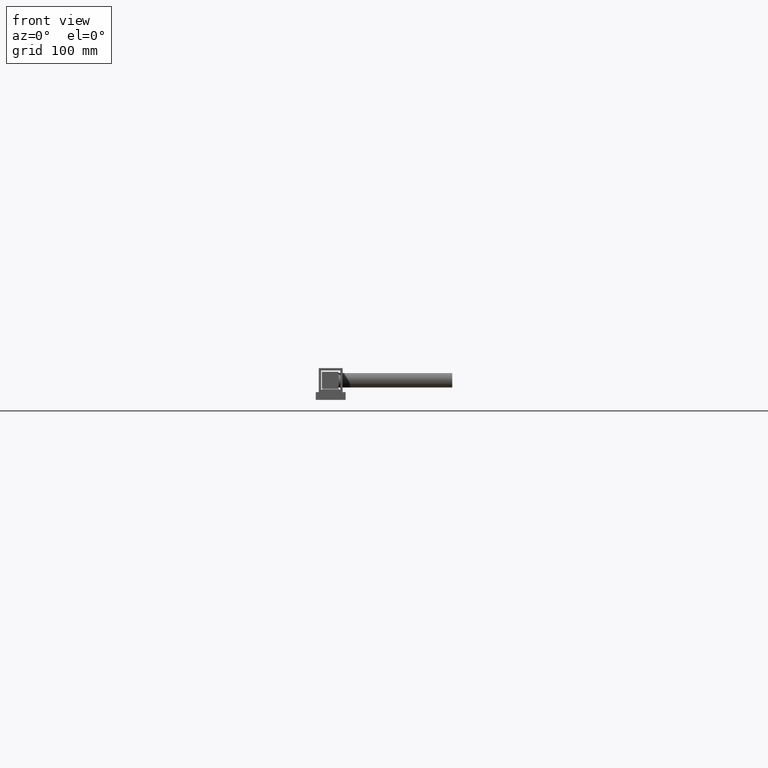
[diagram: clean part render]
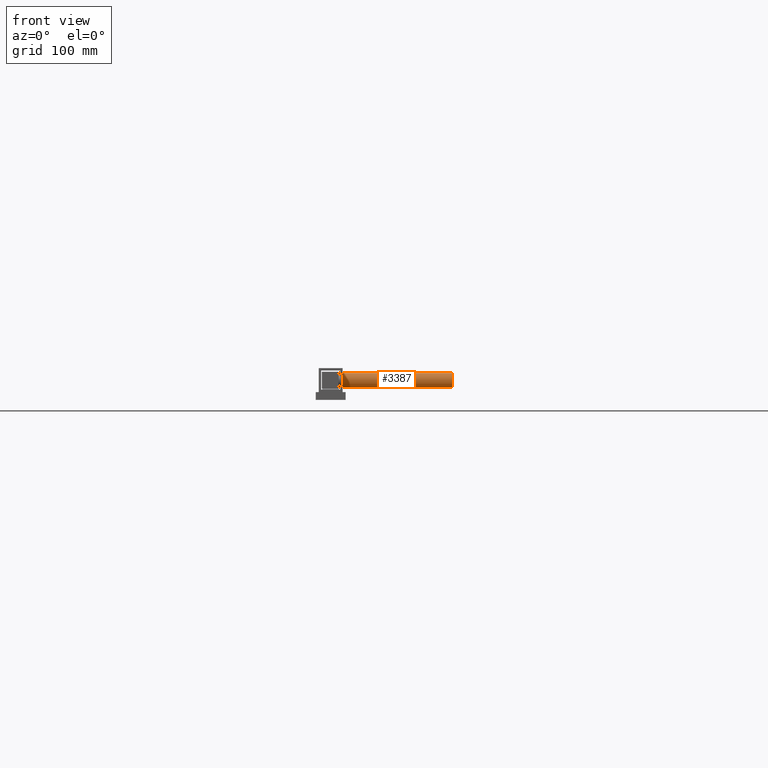
[diagram: same view with one face highlighted and labeled with its STEP entity id]
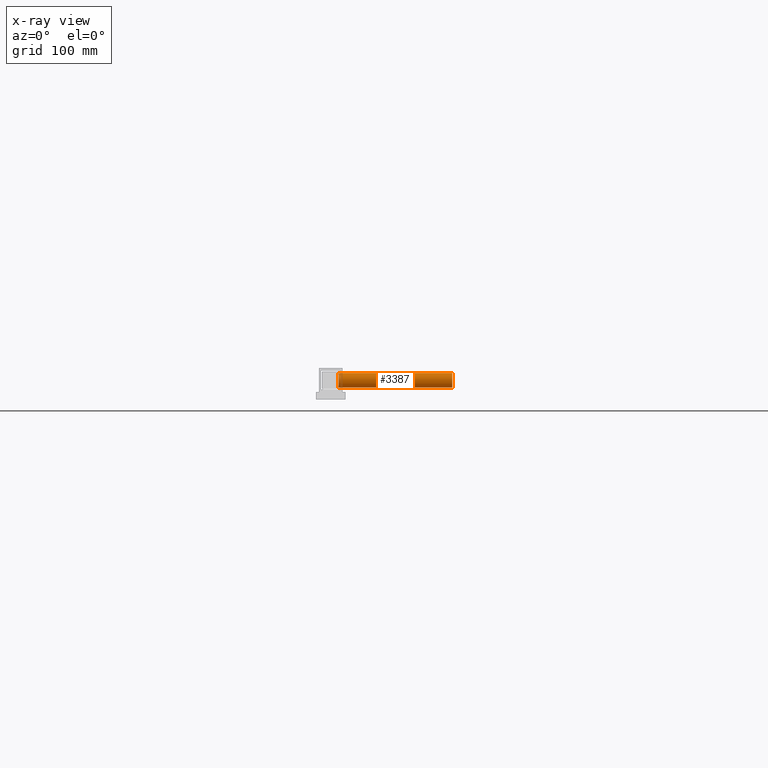
[diagram: x-ray of the same camera — body ghosted, the highlighted face saturated]
A machine part, front view. The second image highlights one B-rep face of the part: STEP entity #3387.
The next image is the same camera in x-ray: the body ghosted, the highlighted face saturated — about 3% of this face is hidden behind the body in this view.
In plain terms, the highlighted cylindrical surface (bore or boss wall) has radius 6 mm, axis along (-1, -0, -0).
Its self-contained STEP definition (entity closure, byte-faithful):
#174 = EDGE_CURVE ( 'NONE', #7040, #7040, #1661, .T. ) ;
#449 = CARTESIAN_POINT ( 'NONE',  ( 101.6724173620451381, 387.0000000000000000, 10.36032359920136159 ) ) ;
#752 = DIRECTION ( 'NONE',  ( 1.000000000000000000, 0.000000000000000000, 0.000000000000000000 ) ) ;
#1661 = CIRCLE ( 'NONE', #3406, 6.000000000000003553 ) ;
#2179 = ORIENTED_EDGE ( 'NONE', *, *, #7530, .T. ) ;
#2356 = DIRECTION ( 'NONE',  ( 0.000000000000000000, 0.000000000000000000, -1.000000000000000000 ) ) ;
#2431 = DIRECTION ( 'NONE',  ( 1.000000000000000000, 0.000000000000000000, 0.000000000000000000 ) ) ;
#3198 = DIRECTION ( 'NONE',  ( 0.000000000000000000, 0.000000000000000000, 1.000000000000000000 ) ) ;
#3254 = AXIS2_PLACEMENT_3D ( 'NONE', #11800, #6933, #3198 ) ;
#3315 = CARTESIAN_POINT ( 'NONE',  ( 6.672417362045123923, 387.0000000000000000, 16.36032359920136514 ) ) ;
#3387 = ADVANCED_FACE ( 'NONE', ( #4809, #3571 ), #9721, .T. ) ;
#3406 = AXIS2_PLACEMENT_3D ( 'NONE', #10211, #752, #9423 ) ;
#3571 = FACE_OUTER_BOUND ( 'NONE', #10236, .T. ) ;
#3617 = CIRCLE ( 'NONE', #4990, 6.000000000000003553 ) ;
#4001 = EDGE_LOOP ( 'NONE', ( #4123 ) ) ;
#4123 = ORIENTED_EDGE ( 'NONE', *, *, #174, .F. ) ;
#4809 = FACE_OUTER_BOUND ( 'NONE', #4001, .T. ) ;
#4990 = AXIS2_PLACEMENT_3D ( 'NONE', #3315, #2431, #2356 ) ;
#6933 = DIRECTION ( 'NONE',  ( -1.000000000000000000, -0.000000000000000000, -0.000000000000000000 ) ) ;
#7040 = VERTEX_POINT ( 'NONE', #449 ) ;
#7530 = EDGE_CURVE ( 'NONE', #11517, #11517, #3617, .T. ) ;
#9423 = DIRECTION ( 'NONE',  ( 0.000000000000000000, 0.000000000000000000, -1.000000000000000000 ) ) ;
#9721 = CYLINDRICAL_SURFACE ( 'NONE', #3254, 6.000000000000005329 ) ;
#10211 = CARTESIAN_POINT ( 'NONE',  ( 101.6724173620451381, 387.0000000000000000, 16.36032359920136514 ) ) ;
#10236 = EDGE_LOOP ( 'NONE', ( #2179 ) ) ;
#11517 = VERTEX_POINT ( 'NONE', #12056 ) ;
#11800 = CARTESIAN_POINT ( 'NONE',  ( 101.6724173620451381, 387.0000000000000000, 16.36032359920136514 ) ) ;
#12056 = CARTESIAN_POINT ( 'NONE',  ( 6.672417362045123923, 387.0000000000000000, 10.36032359920136159 ) ) ;